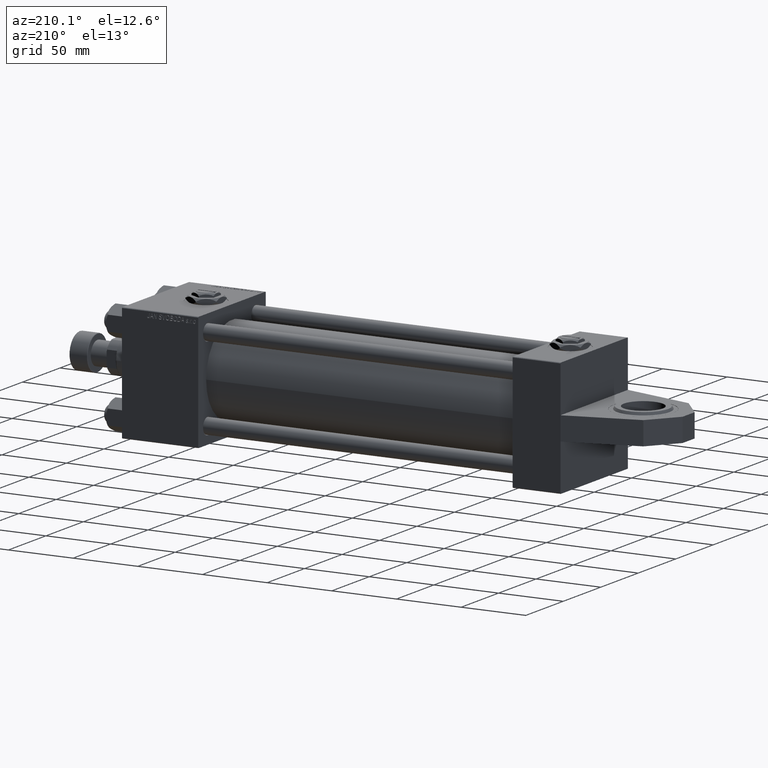
[diagram: clean part render]
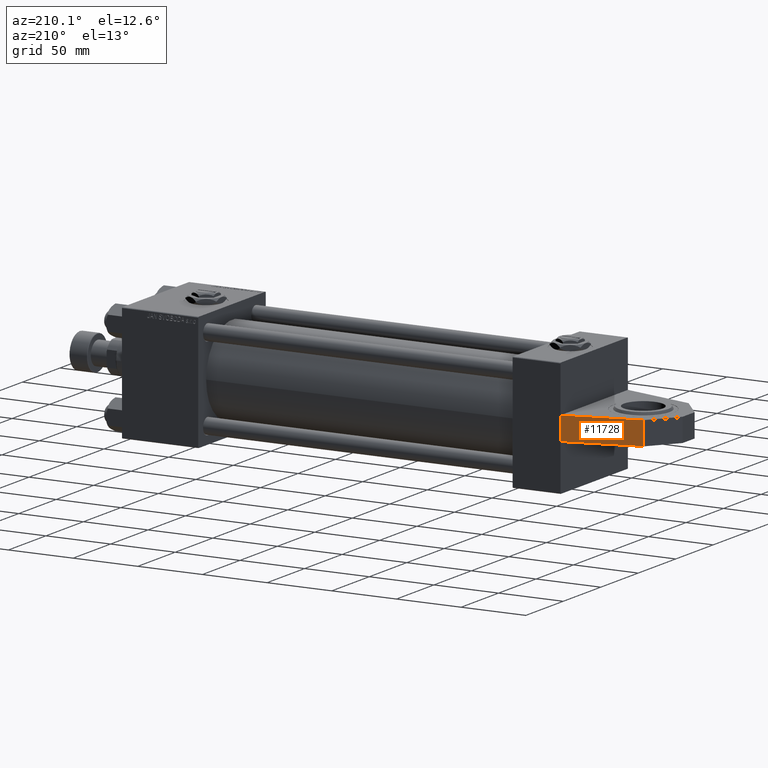
[diagram: same view with one face highlighted and labeled with its STEP entity id]
A machine part, auxiliary view. The second image highlights one B-rep face of the part: STEP entity #11728.
In plain terms, the highlighted planar face has unit normal (-0.2588, 0.9659, 0).
Its self-contained STEP definition (entity closure, byte-faithful):
#284 = FACE_OUTER_BOUND ( 'NONE', #20776, .T. ) ;
#3098 = EDGE_CURVE ( 'NONE', #13732, #18099, #50018, .T. ) ;
#4982 = CARTESIAN_POINT ( 'NONE',  ( -55.50000000000000711, -9.000000000000000000, -30.12881982007243309 ) ) ;
#8132 = EDGE_CURVE ( 'NONE', #46996, #50583, #23827, .T. ) ;
#9303 = EDGE_CURVE ( 'NONE', #18099, #50583, #26533, .T. ) ;
#10114 = CARTESIAN_POINT ( 'NONE',  ( 0.000000000000000000, -9.000000000000000000, -45.00000000000000000 ) ) ;
#11728 = ADVANCED_FACE ( 'NONE', ( #284 ), #32806, .T. ) ;
#13732 = VERTEX_POINT ( 'NONE', #49853 ) ;
#14824 = VECTOR ( 'NONE', #50384, 1000.000000000000000 ) ;
#18099 = VERTEX_POINT ( 'NONE', #32331 ) ;
#20776 = EDGE_LOOP ( 'NONE', ( #39072, #28700, #26781, #40076 ) ) ;
#23827 = LINE ( 'NONE', #27048, #30595 ) ;
#24766 = CARTESIAN_POINT ( 'NONE',  ( -55.50000000000000711, 9.000000000000000000, -30.12881982007243309 ) ) ;
#25598 = AXIS2_PLACEMENT_3D ( 'NONE', #45051, #45574, #49051 ) ;
#26533 = LINE ( 'NONE', #46516, #50204 ) ;
#26781 = ORIENTED_EDGE ( 'NONE', *, *, #3098, .T. ) ;
#27048 = CARTESIAN_POINT ( 'NONE',  ( -55.50000000000000711, 9.000000000000000000, -30.12881982007243309 ) ) ;
#28700 = ORIENTED_EDGE ( 'NONE', *, *, #50440, .F. ) ;
#29347 = LINE ( 'NONE', #10114, #14824 ) ;
#30595 = VECTOR ( 'NONE', #43302, 1000.000000000000227 ) ;
#32331 = CARTESIAN_POINT ( 'NONE',  ( -55.50000000000000711, -9.000000000000000000, -30.12881982007243309 ) ) ;
#32806 = PLANE ( 'NONE',  #25598 ) ;
#33939 = CARTESIAN_POINT ( 'NONE',  ( 0.000000000000000000, 9.000000000000000000, -45.00000000000000000 ) ) ;
#37796 = DIRECTION ( 'NONE',  ( -0.9659258262890670910, -0.000000000000000000, 0.2588190451025247918 ) ) ;
#38282 = DIRECTION ( 'NONE',  ( 0.000000000000000000, 1.000000000000000000, 0.000000000000000000 ) ) ;
#39072 = ORIENTED_EDGE ( 'NONE', *, *, #8132, .F. ) ;
#40076 = ORIENTED_EDGE ( 'NONE', *, *, #9303, .T. ) ;
#40893 = VECTOR ( 'NONE', #37796, 1000.000000000000227 ) ;
#43302 = DIRECTION ( 'NONE',  ( -0.9659258262890670910, -0.000000000000000000, 0.2588190451025247918 ) ) ;
#45051 = CARTESIAN_POINT ( 'NONE',  ( -55.50000000000000711, -9.000000000000000000, -30.12881982007243309 ) ) ;
#45574 = DIRECTION ( 'NONE',  ( -0.2588190451025247918, 0.000000000000000000, -0.9659258262890672020 ) ) ;
#46516 = CARTESIAN_POINT ( 'NONE',  ( -55.50000000000000711, -9.000000000000000000, -30.12881982007243309 ) ) ;
#46996 = VERTEX_POINT ( 'NONE', #33939 ) ;
#49051 = DIRECTION ( 'NONE',  ( -0.9659258262890672020, 0.000000000000000000, 0.2588190451025247918 ) ) ;
#49853 = CARTESIAN_POINT ( 'NONE',  ( 0.000000000000000000, -8.999999999999987566, -44.99999999999999289 ) ) ;
#50018 = LINE ( 'NONE', #4982, #40893 ) ;
#50204 = VECTOR ( 'NONE', #38282, 1000.000000000000000 ) ;
#50384 = DIRECTION ( 'NONE',  ( 0.000000000000000000, 1.000000000000000000, 0.000000000000000000 ) ) ;
#50440 = EDGE_CURVE ( 'NONE', #13732, #46996, #29347, .T. ) ;
#50583 = VERTEX_POINT ( 'NONE', #24766 ) ;